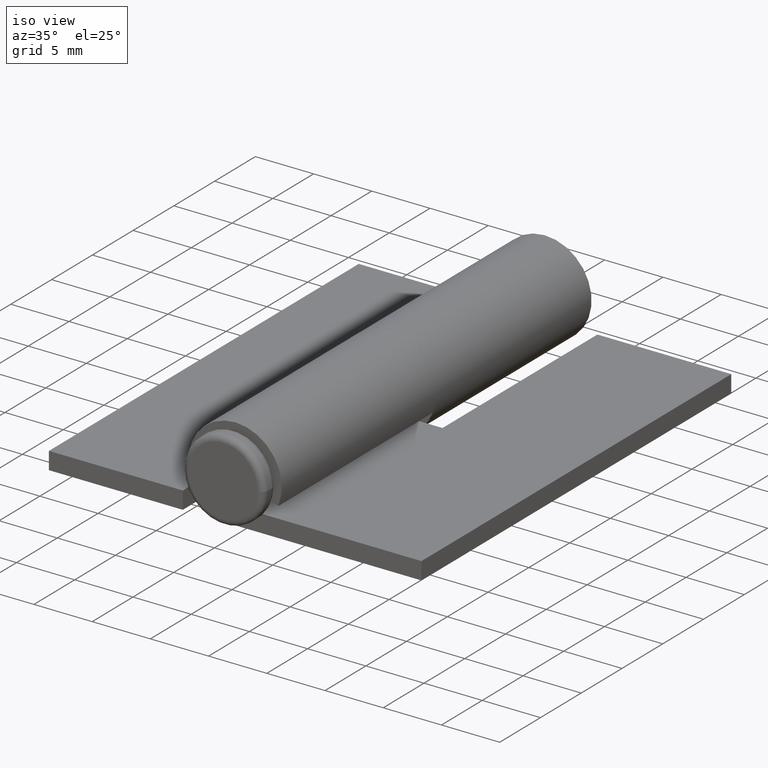
[diagram: clean part render]
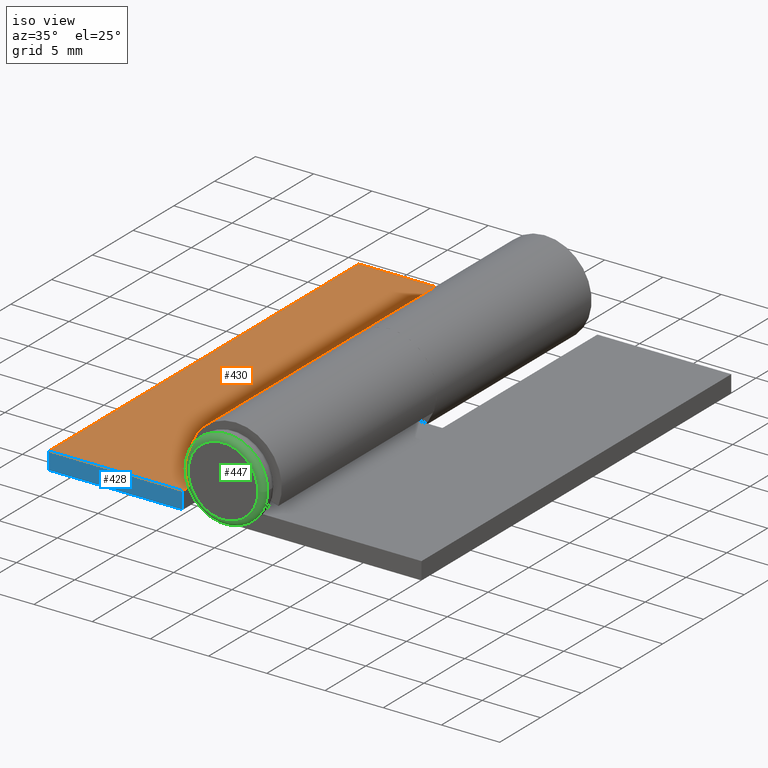
[diagram: same view with three faces highlighted in distinct colors, each labeled with its STEP entity id]
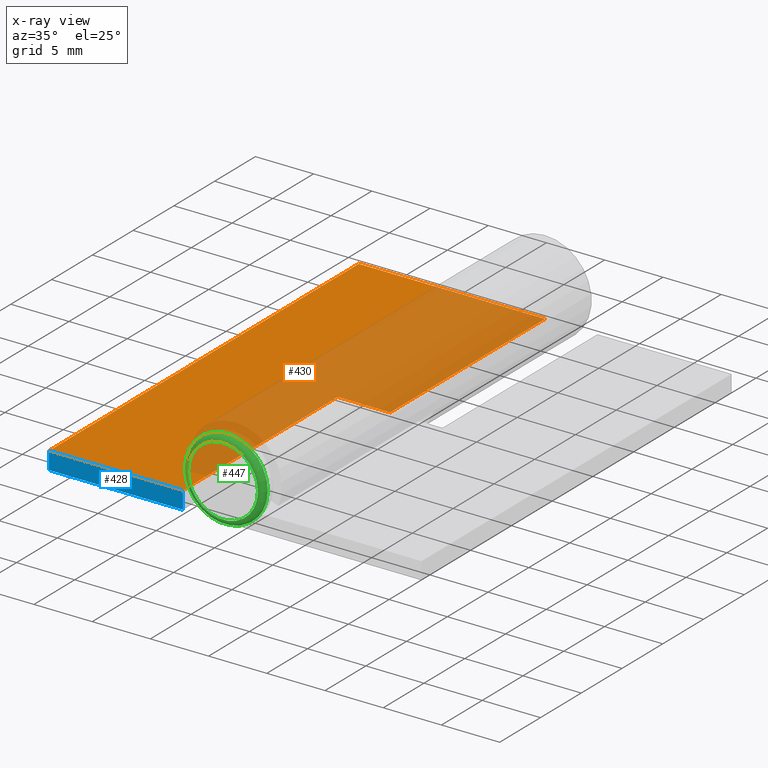
[diagram: x-ray of the same camera — body ghosted, the three highlighted faces saturated]
A machine part, iso view with three faces highlighted in distinct colors.
The next image is the same camera in x-ray (body ghosted, the three faces saturated) — at least one of them is partly hidden behind the body in this view.
Their STEP definitions:

[orange] entity #430 — the highlighted planar face has unit normal (-0, -0, 1).
#50=FACE_OUTER_BOUND('',#78,.T.);
#78=EDGE_LOOP('',(#323,#324,#325,#326,#327,#328));
#107=LINE('',#649,#147);
#110=LINE('',#655,#150);
#118=LINE('',#673,#158);
#120=LINE('',#677,#160);
#122=LINE('',#681,#162);
#123=LINE('',#682,#163);
#147=VECTOR('',#512,4.5);
#150=VECTOR('',#517,19.);
#158=VECTOR('',#533,11.5);
#160=VECTOR('',#537,38.);
#162=VECTOR('',#541,19.);
#163=VECTOR('',#542,16.);
#204=VERTEX_POINT('',#646);
#205=VERTEX_POINT('',#648);
#207=VERTEX_POINT('',#654);
#213=VERTEX_POINT('',#672);
#214=VERTEX_POINT('',#676);
#215=VERTEX_POINT('',#680);
#243=EDGE_CURVE('',#205,#204,#107,.T.);
#246=EDGE_CURVE('',#207,#205,#110,.T.);
#255=EDGE_CURVE('',#213,#207,#118,.T.);
#257=EDGE_CURVE('',#214,#213,#120,.T.);
#259=EDGE_CURVE('',#215,#204,#122,.T.);
#260=EDGE_CURVE('',#214,#215,#123,.T.);
#323=ORIENTED_EDGE('',*,*,#243,.T.);
#324=ORIENTED_EDGE('',*,*,#259,.F.);
#325=ORIENTED_EDGE('',*,*,#260,.F.);
#326=ORIENTED_EDGE('',*,*,#257,.T.);
#327=ORIENTED_EDGE('',*,*,#255,.T.);
#328=ORIENTED_EDGE('',*,*,#246,.T.);
#410=PLANE('',#465);
#430=ADVANCED_FACE('',(#50),#410,.T.);
#465=AXIS2_PLACEMENT_3D('',#679,#539,#540);
#512=DIRECTION('',(1.,2.25514051876985E-16,2.61228946970625E-16));
#517=DIRECTION('',(2.92163953848725E-16,6.58870770448265E-32,-1.));
#533=DIRECTION('',(1.,2.25514051876985E-16,0.));
#537=DIRECTION('',(0.,0.,1.));
#539=DIRECTION('center_axis',(-2.25514051876985E-16,1.,0.));
#540=DIRECTION('ref_axis',(0.,0.,1.));
#541=DIRECTION('',(0.,0.,1.));
#542=DIRECTION('',(1.,2.25514051876985E-16,0.));
#646=CARTESIAN_POINT('',(1.53080849893419E-16,1.5,19.));
#648=CARTESIAN_POINT('',(-4.5,1.5,19.));
#649=CARTESIAN_POINT('',(-10.25,1.5,19.));
#654=CARTESIAN_POINT('',(-4.50000000000001,1.5,38.));
#655=CARTESIAN_POINT('',(-4.5,1.5,19.));
#672=CARTESIAN_POINT('',(-16.,1.5,38.));
#673=CARTESIAN_POINT('',(-16.,1.5,38.));
#676=CARTESIAN_POINT('',(-16.,1.5,0.));
#677=CARTESIAN_POINT('',(-16.,1.5,0.));
#679=CARTESIAN_POINT('Origin',(-16.,1.5,0.));
#680=CARTESIAN_POINT('',(1.53080849893419E-16,1.5,0.));
#681=CARTESIAN_POINT('',(1.53080849893419E-16,1.5,0.));
#682=CARTESIAN_POINT('',(-16.,1.5,0.));

[blue] entity #428 — the highlighted planar face has unit normal (0, -1, 0).
#48=FACE_OUTER_BOUND('',#76,.T.);
#76=EDGE_LOOP('',(#315,#316,#317,#318));
#111=LINE('',#657,#151);
#113=LINE('',#661,#153);
#118=LINE('',#673,#158);
#119=LINE('',#674,#159);
#151=VECTOR('',#518,1.5);
#153=VECTOR('',#522,11.5);
#158=VECTOR('',#533,11.5);
#159=VECTOR('',#534,1.5);
#207=VERTEX_POINT('',#654);
#208=VERTEX_POINT('',#656);
#209=VERTEX_POINT('',#660);
#213=VERTEX_POINT('',#672);
#247=EDGE_CURVE('',#208,#207,#111,.T.);
#249=EDGE_CURVE('',#208,#209,#113,.T.);
#255=EDGE_CURVE('',#213,#207,#118,.T.);
#256=EDGE_CURVE('',#209,#213,#119,.T.);
#315=ORIENTED_EDGE('',*,*,#247,.T.);
#316=ORIENTED_EDGE('',*,*,#255,.F.);
#317=ORIENTED_EDGE('',*,*,#256,.F.);
#318=ORIENTED_EDGE('',*,*,#249,.F.);
#408=PLANE('',#463);
#428=ADVANCED_FACE('',(#48),#408,.T.);
#463=AXIS2_PLACEMENT_3D('',#671,#531,#532);
#518=DIRECTION('',(-1.11022302462516E-16,1.,0.));
#522=DIRECTION('',(-1.,-1.21430643318377E-16,0.));
#531=DIRECTION('center_axis',(0.,0.,1.));
#532=DIRECTION('ref_axis',(1.,0.,0.));
#533=DIRECTION('',(1.,2.25514051876985E-16,0.));
#534=DIRECTION('',(0.,1.,0.));
#654=CARTESIAN_POINT('',(-4.50000000000001,1.5,38.));
#656=CARTESIAN_POINT('',(-4.50000000000001,-5.46437894932695E-16,38.));
#657=CARTESIAN_POINT('',(-4.50000000000001,1.26959508579537,38.));
#660=CARTESIAN_POINT('',(-16.,-1.94289029309402E-15,38.));
#661=CARTESIAN_POINT('',(0.,0.,38.));
#671=CARTESIAN_POINT('Origin',(-4.06133250128745,2.53919017159074,38.));
#672=CARTESIAN_POINT('',(-16.,1.5,38.));
#673=CARTESIAN_POINT('',(-16.,1.5,38.));
#674=CARTESIAN_POINT('',(-16.,-1.94289029309402E-15,38.));

[green] entity #447 — the highlighted toroidal blend (fillet) surface has major radius 3 mm and minor (blend) radius 0.5 mm.
#21=FACE_BOUND('',#98,.T.);
#26=TOROIDAL_SURFACE('',#491,3.,0.5);
#67=FACE_OUTER_BOUND('',#97,.T.);
#97=EDGE_LOOP('',(#396));
#98=EDGE_LOOP('',(#397));
#197=CIRCLE('',#492,3.);
#198=CIRCLE('',#493,3.5);
#236=VERTEX_POINT('',#751);
#237=VERTEX_POINT('',#753);
#291=EDGE_CURVE('',#236,#236,#197,.T.);
#292=EDGE_CURVE('',#237,#237,#198,.T.);
#396=ORIENTED_EDGE('',*,*,#291,.T.);
#397=ORIENTED_EDGE('',*,*,#292,.T.);
#447=ADVANCED_FACE('',(#67,#21),#26,.T.);
#491=AXIS2_PLACEMENT_3D('',#750,#615,#616);
#492=AXIS2_PLACEMENT_3D('',#752,#617,#618);
#493=AXIS2_PLACEMENT_3D('',#754,#619,#620);
#615=DIRECTION('center_axis',(0.,0.,1.));
#616=DIRECTION('ref_axis',(1.,0.,0.));
#617=DIRECTION('center_axis',(0.,0.,1.));
#618=DIRECTION('ref_axis',(1.,0.,0.));
#619=DIRECTION('center_axis',(0.,0.,-1.));
#620=DIRECTION('ref_axis',(1.,0.,0.));
#750=CARTESIAN_POINT('Origin',(-4.89858719658941E-16,4.,-1.));
#751=CARTESIAN_POINT('',(-3.,4.,-1.5));
#752=CARTESIAN_POINT('Origin',(-4.89858719658941E-16,4.,-1.5));
#753=CARTESIAN_POINT('',(-3.5,4.,-1.));
#754=CARTESIAN_POINT('Origin',(-4.89858719658941E-16,4.,-1.));